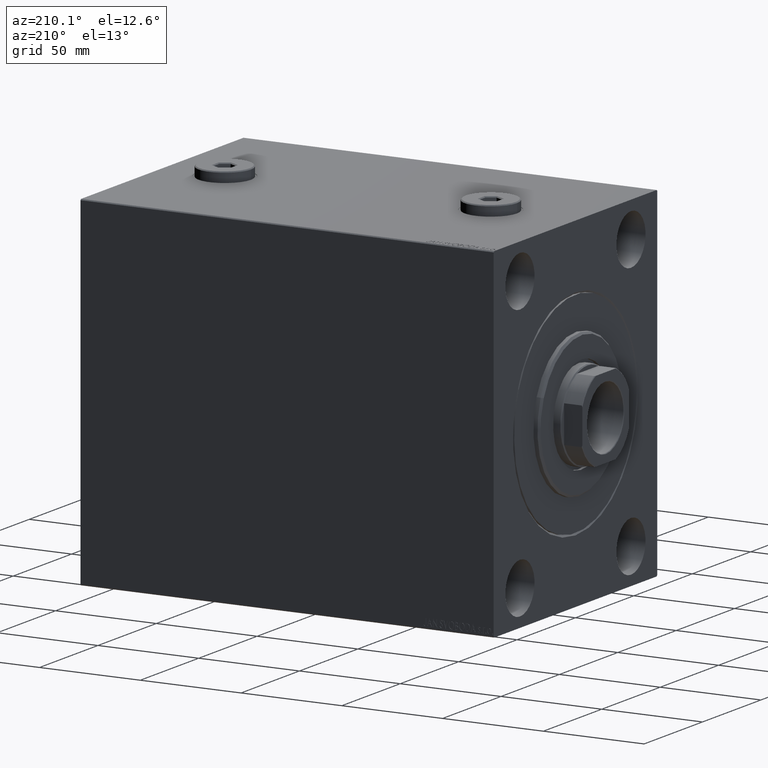
[diagram: clean part render]
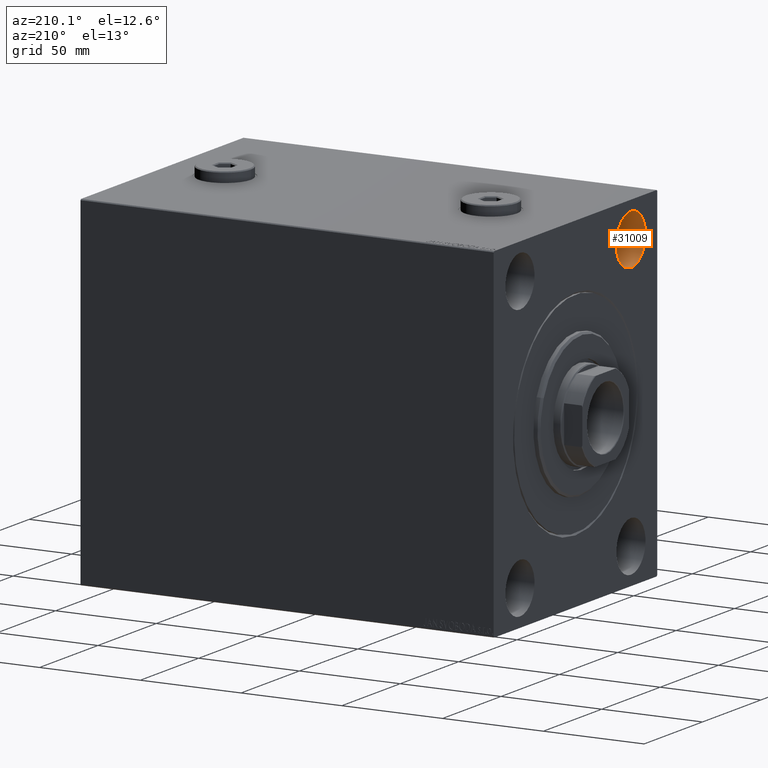
[diagram: same view with one face highlighted and labeled with its STEP entity id]
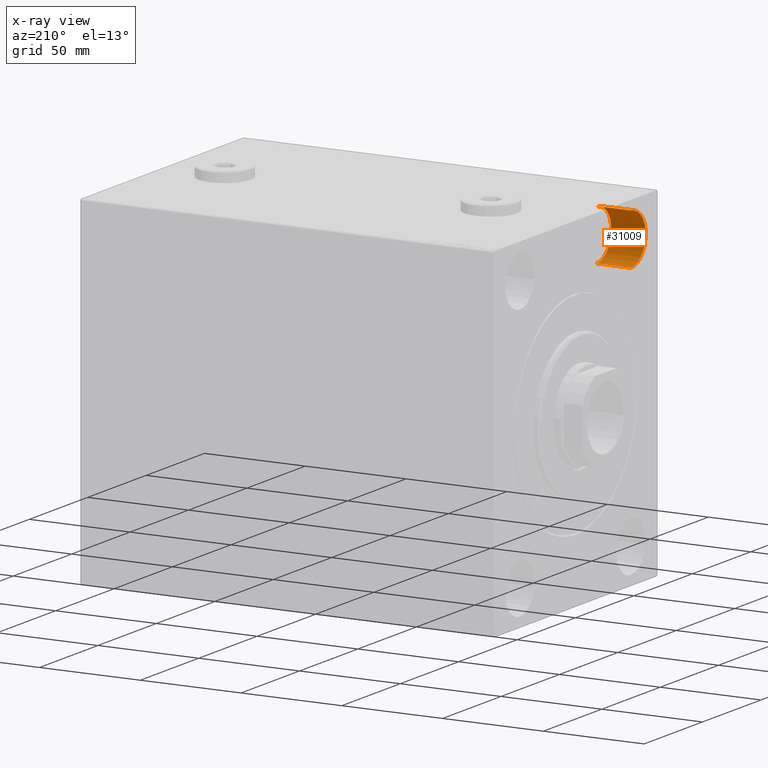
[diagram: x-ray of the same camera — body ghosted, the highlighted face saturated]
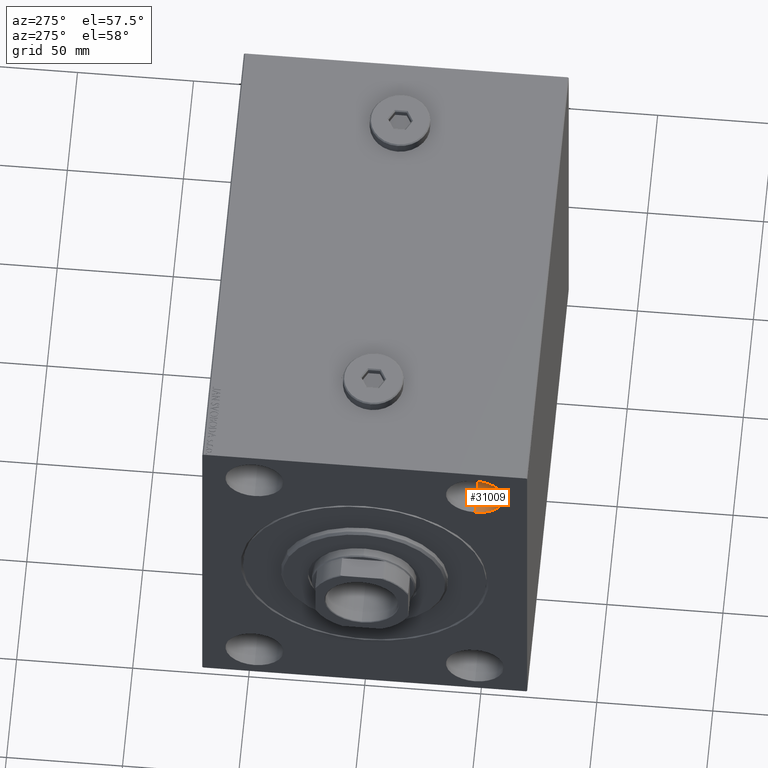
[diagram: same view with one face highlighted and labeled with its STEP entity id]
A machine part, auxiliary view. The second image highlights one B-rep face of the part: STEP entity #31009.
The next image is the same camera in x-ray: the body ghosted, the highlighted face saturated — about 2% of this face is hidden behind the body in this view.
A second angle (auxiliary view) of the same face is appended — the face is thin or edge-on in the first view.
In plain terms, the highlighted cylindrical surface (edge-blend (fillet) strip) has radius 12.5 mm, axis along (-1, -0, -0).
Its self-contained STEP definition (entity closure, byte-faithful):
#323 = ORIENTED_EDGE ( 'NONE', *, *, #28976, .T. ) ;
#552 = CARTESIAN_POINT ( 'NONE',  ( 0.000000000000000000, -47.49999999999997868, 80.00000000000001421 ) ) ;
#3317 = DIRECTION ( 'NONE',  ( 0.000000000000000000, 0.000000000000000000, 1.000000000000000000 ) ) ;
#3500 = DIRECTION ( 'NONE',  ( -1.000000000000000000, -0.000000000000000000, -0.000000000000000000 ) ) ;
#4395 = ORIENTED_EDGE ( 'NONE', *, *, #5545, .F. ) ;
#5225 = CARTESIAN_POINT ( 'NONE',  ( 0.000000000000000000, -47.49999999999997868, 55.00000000000000000 ) ) ;
#5545 = EDGE_CURVE ( 'NONE', #7325, #25016, #14754, .T. ) ;
#7325 = VERTEX_POINT ( 'NONE', #20001 ) ;
#7845 = CARTESIAN_POINT ( 'NONE',  ( 17.00000000000000000, -47.49999999999997868, 55.00000000000000000 ) ) ;
#9297 = CIRCLE ( 'NONE', #40042, 12.50000000000001066 ) ;
#11340 = DIRECTION ( 'NONE',  ( 0.000000000000000000, 0.000000000000000000, 1.000000000000000000 ) ) ;
#13393 = FACE_OUTER_BOUND ( 'NONE', #28522, .T. ) ;
#13717 = CIRCLE ( 'NONE', #18792, 12.50000000000001066 ) ;
#14109 = DIRECTION ( 'NONE',  ( -1.000000000000000000, 0.000000000000000000, 0.000000000000000000 ) ) ;
#14754 = LINE ( 'NONE', #22073, #44065 ) ;
#14763 = EDGE_CURVE ( 'NONE', #32231, #40915, #24594, .T. ) ;
#18792 = AXIS2_PLACEMENT_3D ( 'NONE', #21203, #14109, #3317 ) ;
#20001 = CARTESIAN_POINT ( 'NONE',  ( 17.00000000000000000, -47.49999999999997868, 80.00000000000001421 ) ) ;
#21166 = CYLINDRICAL_SURFACE ( 'NONE', #43015, 12.50000000000001066 ) ;
#21203 = CARTESIAN_POINT ( 'NONE',  ( 0.000000000000000000, -47.49999999999997868, 67.50000000000000000 ) ) ;
#21399 = DIRECTION ( 'NONE',  ( -1.000000000000000000, -0.000000000000000000, -0.000000000000000000 ) ) ;
#22073 = CARTESIAN_POINT ( 'NONE',  ( 17.00000000000000000, -47.49999999999997868, 80.00000000000001421 ) ) ;
#24594 = LINE ( 'NONE', #7845, #25148 ) ;
#25016 = VERTEX_POINT ( 'NONE', #552 ) ;
#25148 = VECTOR ( 'NONE', #3500, 1000.000000000000000 ) ;
#26321 = ORIENTED_EDGE ( 'NONE', *, *, #14763, .T. ) ;
#28522 = EDGE_LOOP ( 'NONE', ( #32997, #26321, #323, #4395 ) ) ;
#28762 = CARTESIAN_POINT ( 'NONE',  ( 17.00000000000000000, -47.49999999999997868, 67.50000000000000000 ) ) ;
#28976 = EDGE_CURVE ( 'NONE', #40915, #25016, #13717, .T. ) ;
#29148 = EDGE_CURVE ( 'NONE', #32231, #7325, #9297, .T. ) ;
#30048 = CARTESIAN_POINT ( 'NONE',  ( 17.00000000000000000, -47.49999999999997868, 55.00000000000000000 ) ) ;
#31009 = ADVANCED_FACE ( 'NONE', ( #13393 ), #21166, .F. ) ;
#32231 = VERTEX_POINT ( 'NONE', #30048 ) ;
#32997 = ORIENTED_EDGE ( 'NONE', *, *, #29148, .F. ) ;
#35816 = CARTESIAN_POINT ( 'NONE',  ( 17.00000000000000000, -47.49999999999997868, 67.50000000000000000 ) ) ;
#39042 = DIRECTION ( 'NONE',  ( 0.000000000000000000, 0.000000000000000000, 1.000000000000000000 ) ) ;
#40042 = AXIS2_PLACEMENT_3D ( 'NONE', #28762, #42731, #11340 ) ;
#40915 = VERTEX_POINT ( 'NONE', #5225 ) ;
#42710 = DIRECTION ( 'NONE',  ( -1.000000000000000000, -0.000000000000000000, -0.000000000000000000 ) ) ;
#42731 = DIRECTION ( 'NONE',  ( -1.000000000000000000, 0.000000000000000000, 0.000000000000000000 ) ) ;
#43015 = AXIS2_PLACEMENT_3D ( 'NONE', #35816, #21399, #39042 ) ;
#44065 = VECTOR ( 'NONE', #42710, 1000.000000000000000 ) ;